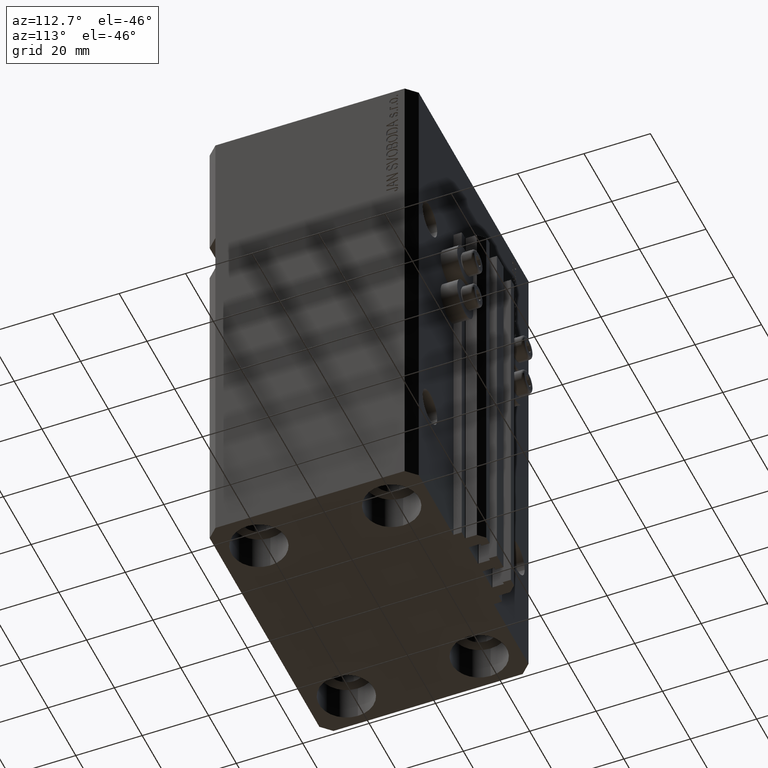
[diagram: clean part render]
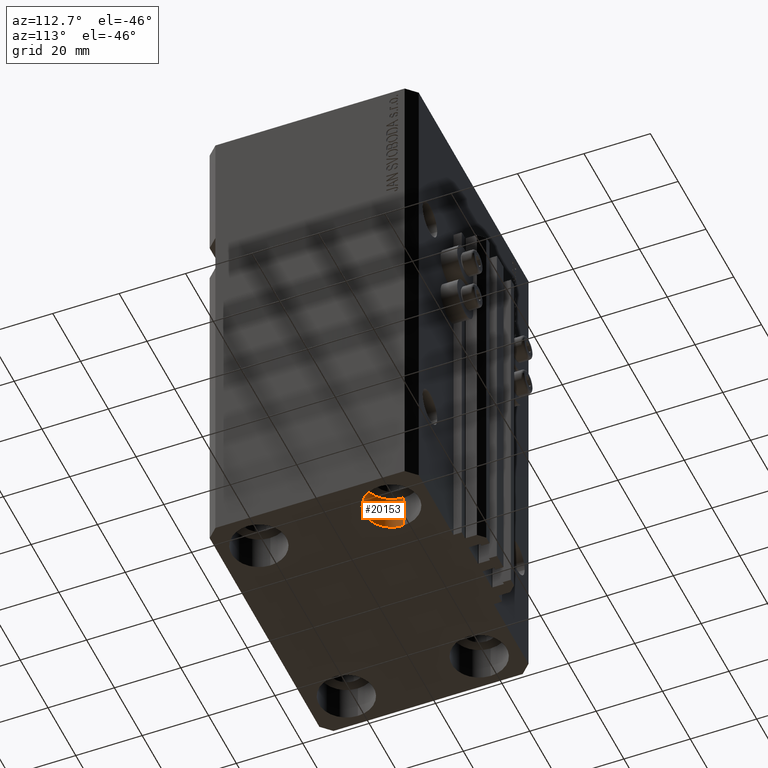
[diagram: same view with one face highlighted and labeled with its STEP entity id]
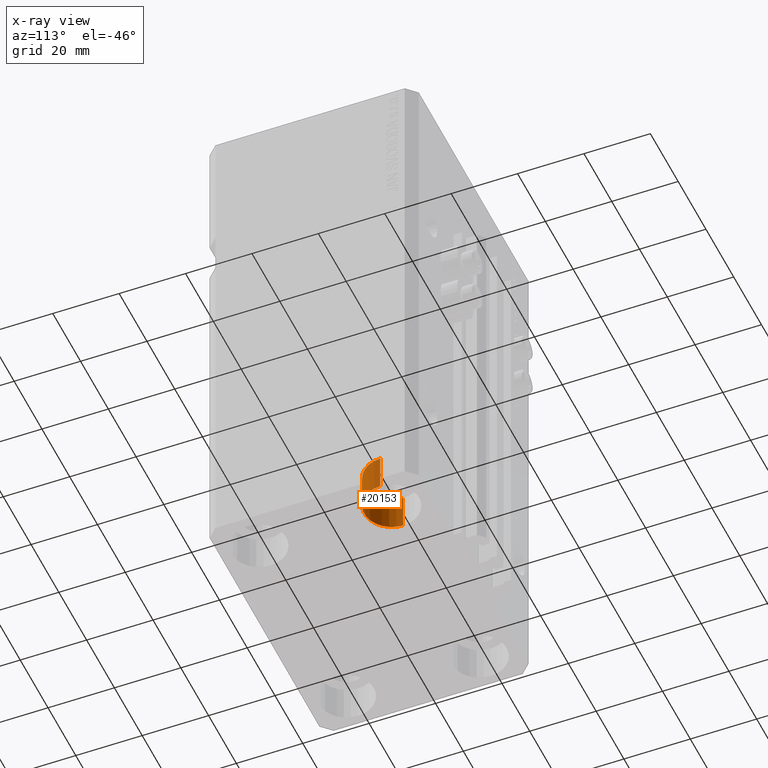
[diagram: x-ray of the same camera — body ghosted, the highlighted face saturated]
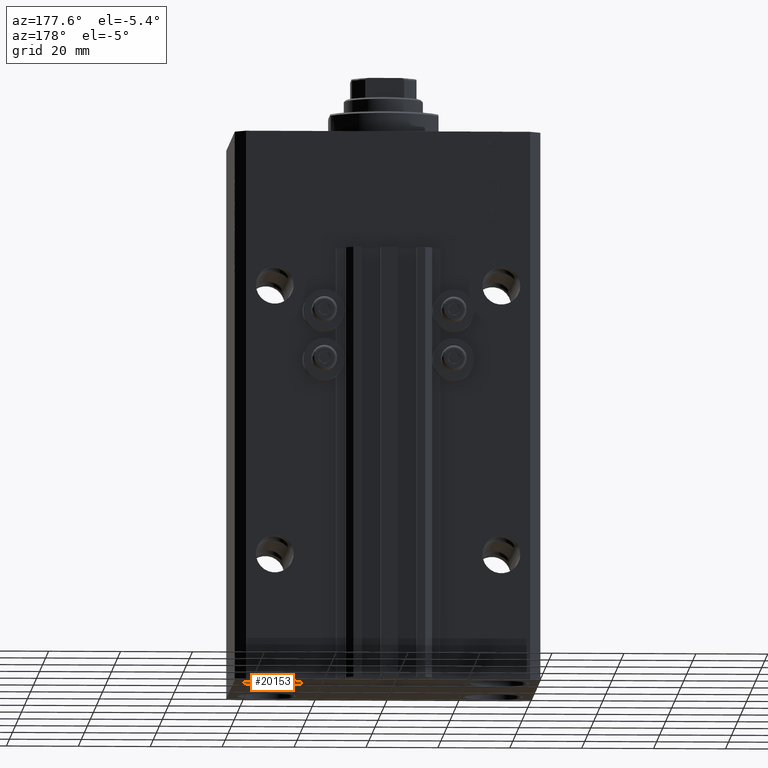
[diagram: same view with one face highlighted and labeled with its STEP entity id]
A machine part, auxiliary view. The second image highlights one B-rep face of the part: STEP entity #20153.
The next image is the same camera in x-ray: the body ghosted, the highlighted face saturated — about 0% of this face is hidden behind the body in this view.
A second angle (auxiliary view) of the same face is appended — the face is thin or edge-on in the first view.
In plain terms, the highlighted cylindrical surface (edge-blend (fillet) strip) has radius 8.25 mm, axis along (-0, -0, -1).
Its self-contained STEP definition (entity closure, byte-faithful):
#257 = EDGE_CURVE ( 'NONE', #8870, #30992, #13459, .T. ) ;
#596 = DIRECTION ( 'NONE',  ( -0.000000000000000000, -0.000000000000000000, -1.000000000000000000 ) ) ;
#2253 = CARTESIAN_POINT ( 'NONE',  ( 23.25000000000000355, 20.00000000000001066, -142.0000000000000000 ) ) ;
#2756 = ORIENTED_EDGE ( 'NONE', *, *, #36530, .F. ) ;
#4014 = CARTESIAN_POINT ( 'NONE',  ( 31.50000000000000000, 20.00000000000001066, -142.0000000000000000 ) ) ;
#5893 = CARTESIAN_POINT ( 'NONE',  ( 39.74999999999999289, 20.00000000000001066, -153.0000000000000000 ) ) ;
#7914 = CARTESIAN_POINT ( 'NONE',  ( 31.50000000000000000, 20.00000000000001066, -153.0000000000000000 ) ) ;
#8141 = FACE_OUTER_BOUND ( 'NONE', #39669, .T. ) ;
#8870 = VERTEX_POINT ( 'NONE', #44581 ) ;
#8937 = VERTEX_POINT ( 'NONE', #31432 ) ;
#10169 = CARTESIAN_POINT ( 'NONE',  ( 39.74999999999999289, 20.00000000000001066, -142.0000000000000000 ) ) ;
#13459 = LINE ( 'NONE', #2253, #32497 ) ;
#14967 = DIRECTION ( 'NONE',  ( -0.000000000000000000, -0.000000000000000000, 1.000000000000000000 ) ) ;
#17803 = ORIENTED_EDGE ( 'NONE', *, *, #257, .F. ) ;
#18854 = CYLINDRICAL_SURFACE ( 'NONE', #25909, 8.249999999999996447 ) ;
#19090 = CARTESIAN_POINT ( 'NONE',  ( 31.50000000000000000, 20.00000000000001066, -142.0000000000000000 ) ) ;
#20153 = ADVANCED_FACE ( 'NONE', ( #8141 ), #18854, .F. ) ;
#22273 = VECTOR ( 'NONE', #25014, 1000.000000000000000 ) ;
#25014 = DIRECTION ( 'NONE',  ( -0.000000000000000000, -0.000000000000000000, -1.000000000000000000 ) ) ;
#25909 = AXIS2_PLACEMENT_3D ( 'NONE', #19090, #596, #44884 ) ;
#27649 = VERTEX_POINT ( 'NONE', #5893 ) ;
#30936 = EDGE_CURVE ( 'NONE', #8937, #27649, #42999, .T. ) ;
#30992 = VERTEX_POINT ( 'NONE', #41276 ) ;
#31432 = CARTESIAN_POINT ( 'NONE',  ( 39.74999999999999289, 20.00000000000001066, -142.0000000000000000 ) ) ;
#32497 = VECTOR ( 'NONE', #43125, 1000.000000000000000 ) ;
#34123 = AXIS2_PLACEMENT_3D ( 'NONE', #7914, #44891, #37597 ) ;
#36530 = EDGE_CURVE ( 'NONE', #30992, #27649, #42660, .T. ) ;
#37597 = DIRECTION ( 'NONE',  ( 1.000000000000000000, 0.000000000000000000, 0.000000000000000000 ) ) ;
#39293 = EDGE_CURVE ( 'NONE', #8870, #8937, #44509, .T. ) ;
#39669 = EDGE_LOOP ( 'NONE', ( #41845, #39702, #2756, #17803 ) ) ;
#39702 = ORIENTED_EDGE ( 'NONE', *, *, #30936, .T. ) ;
#41276 = CARTESIAN_POINT ( 'NONE',  ( 23.25000000000000355, 20.00000000000001066, -153.0000000000000000 ) ) ;
#41845 = ORIENTED_EDGE ( 'NONE', *, *, #39293, .T. ) ;
#42660 = CIRCLE ( 'NONE', #34123, 8.249999999999992895 ) ;
#42999 = LINE ( 'NONE', #10169, #22273 ) ;
#43125 = DIRECTION ( 'NONE',  ( -0.000000000000000000, -0.000000000000000000, -1.000000000000000000 ) ) ;
#44509 = CIRCLE ( 'NONE', #44611, 8.249999999999992895 ) ;
#44581 = CARTESIAN_POINT ( 'NONE',  ( 23.25000000000000355, 20.00000000000001066, -142.0000000000000000 ) ) ;
#44611 = AXIS2_PLACEMENT_3D ( 'NONE', #4014, #14967, #45120 ) ;
#44884 = DIRECTION ( 'NONE',  ( -1.000000000000000000, 0.000000000000000000, 0.000000000000000000 ) ) ;
#44891 = DIRECTION ( 'NONE',  ( -0.000000000000000000, -0.000000000000000000, 1.000000000000000000 ) ) ;
#45120 = DIRECTION ( 'NONE',  ( 1.000000000000000000, 0.000000000000000000, 0.000000000000000000 ) ) ;